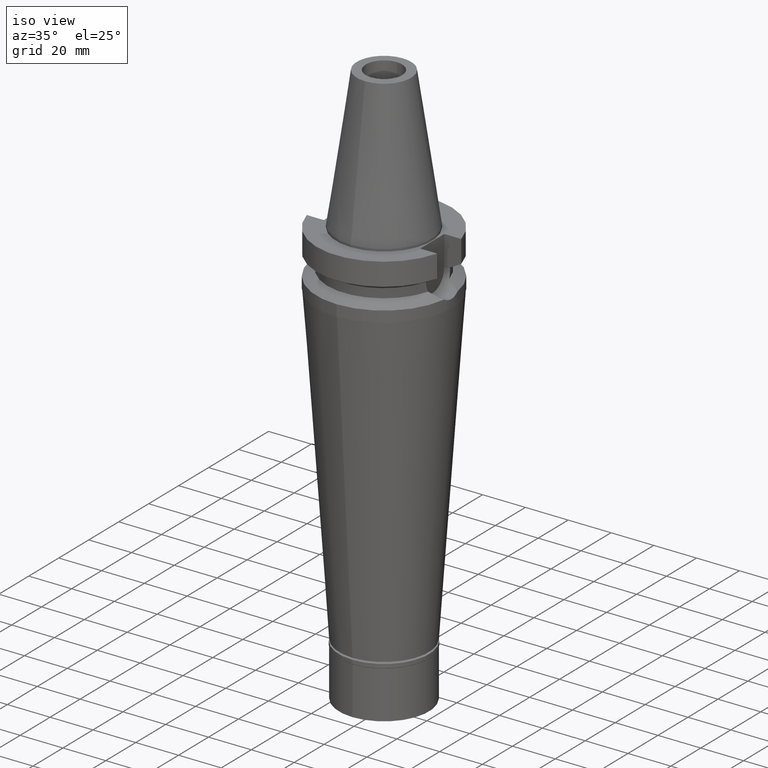
[diagram: clean part render]
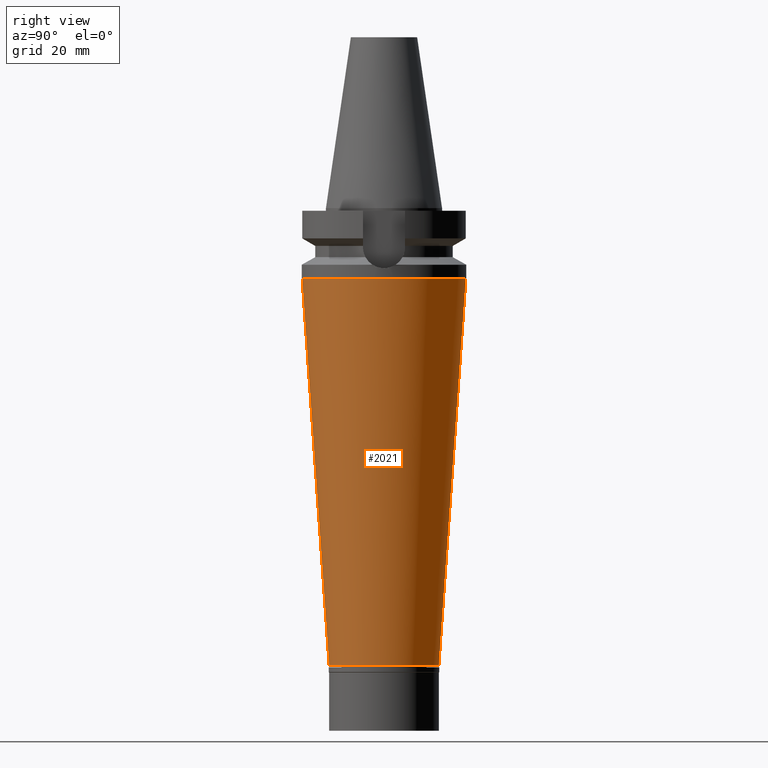
[diagram: tour spotlight — one face highlighted and labeled with its STEP entity id]
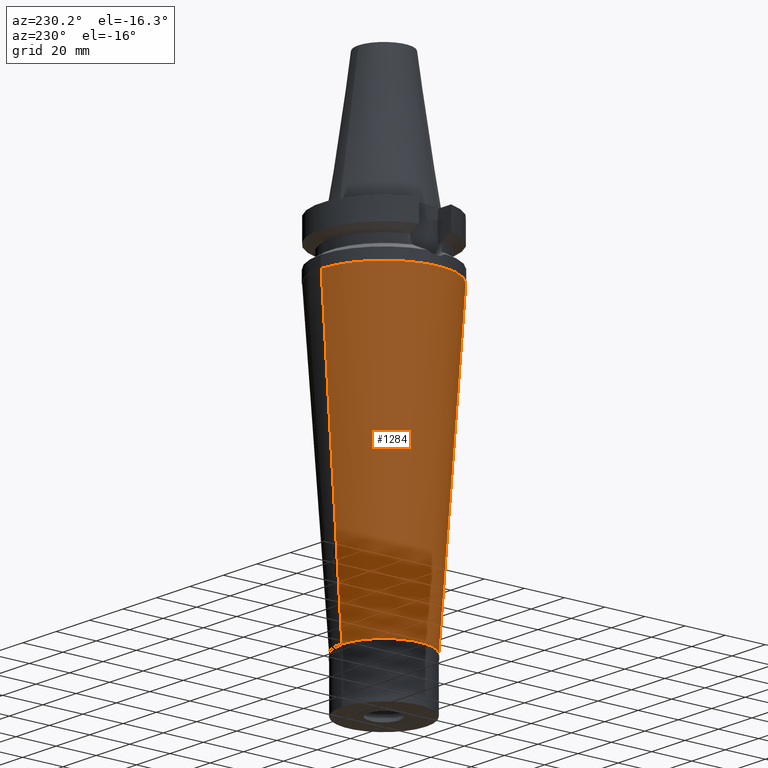
[diagram: tour spotlight — one face highlighted and labeled with its STEP entity id]
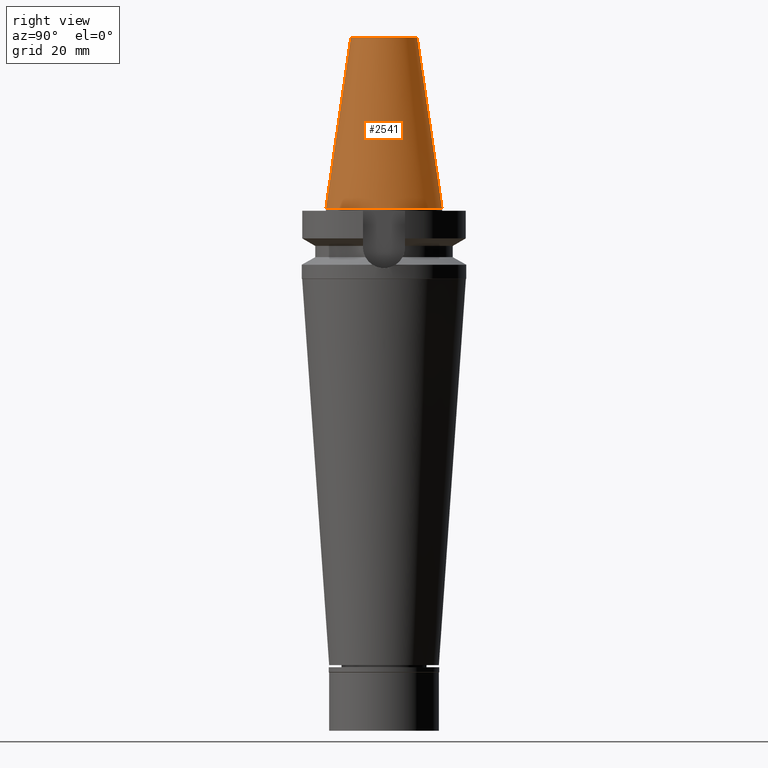
[diagram: tour spotlight — one face highlighted and labeled with its STEP entity id]
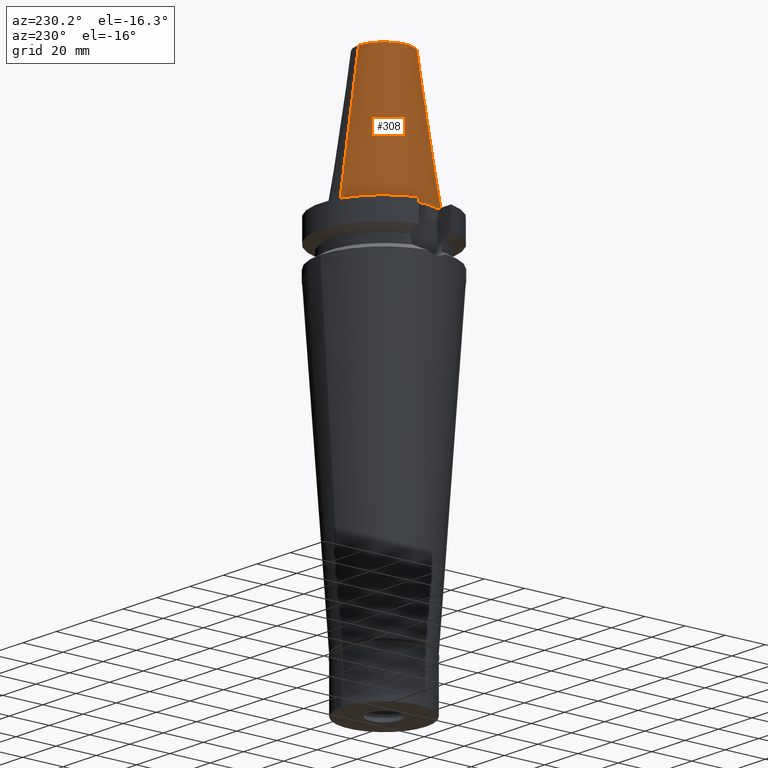
[diagram: tour spotlight — one face highlighted and labeled with its STEP entity id]
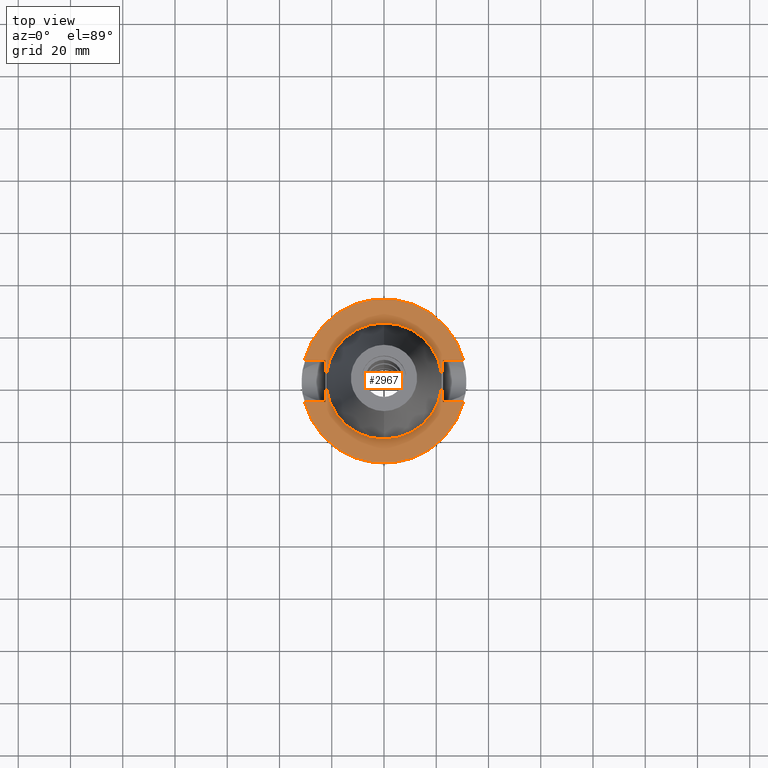
[diagram: tour spotlight — one face highlighted and labeled with its STEP entity id]
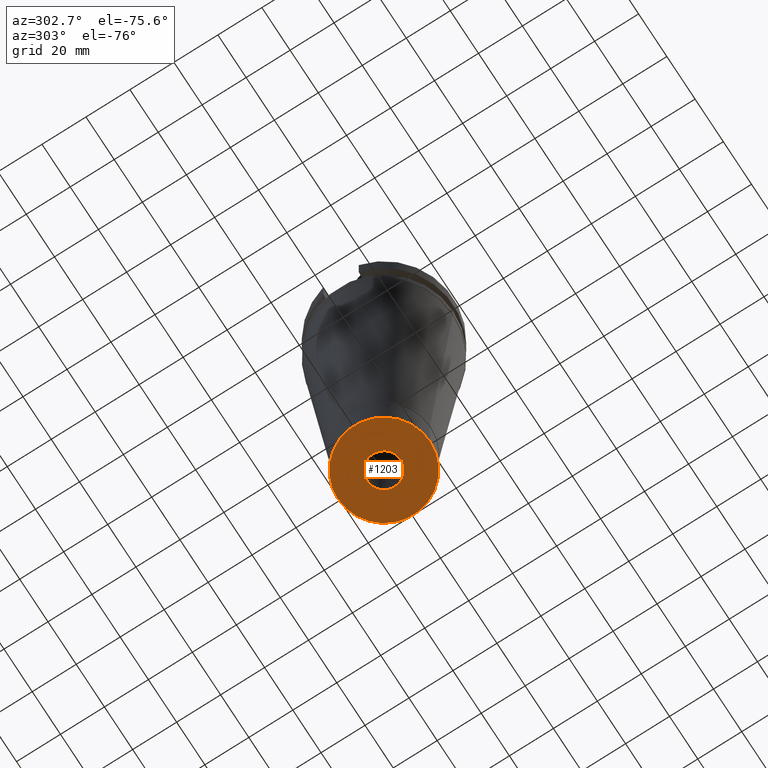
[diagram: tour spotlight — one face highlighted and labeled with its STEP entity id]
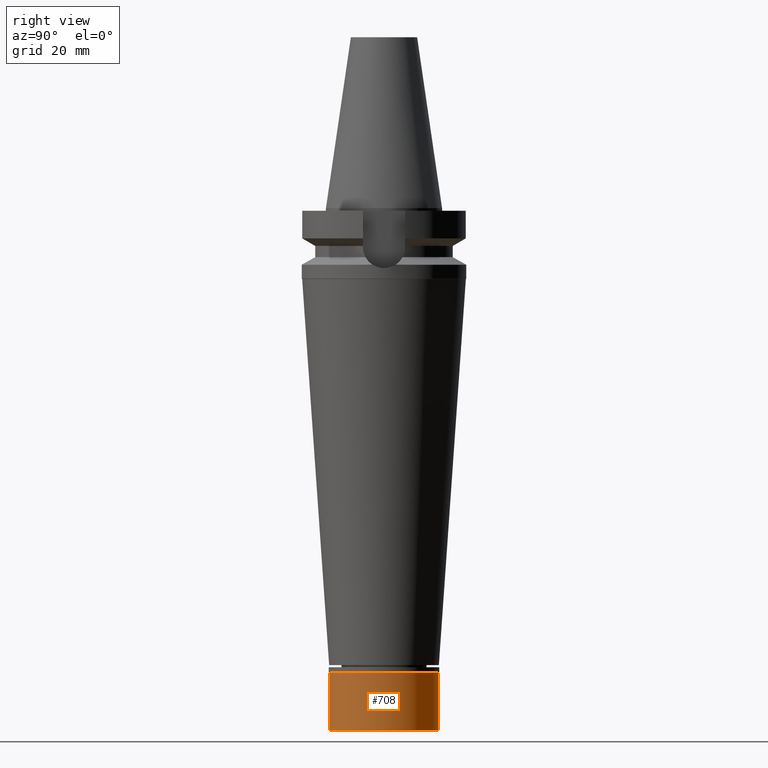
[diagram: tour spotlight — one face highlighted and labeled with its STEP entity id]
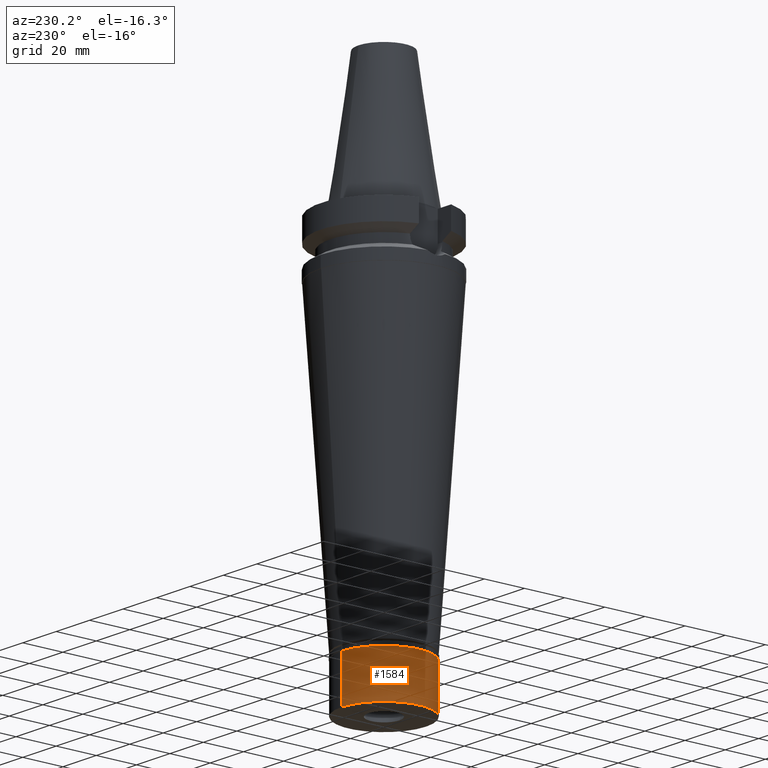
[diagram: tour spotlight — one face highlighted and labeled with its STEP entity id]
A machine part: a face-by-face anatomy tour. The part has 81 B-rep faces; the first image is the clean iso view, then the 8 largest visible faces are spotlighted one at a time (largest first), each with its STEP entity span.

Face 1 — right view, entity #2021. In plain terms, the highlighted conical surface has half-angle 4 deg.
Definition (entity closure, byte-faithful):
#76 = DIRECTION ( 'NONE',  ( 0.0000000000000000000, 0.0000000000000000000, 1.000000000000000000 ) ) ;
#119 = AXIS2_PLACEMENT_3D ( 'NONE', #1590, #2550, #2302 ) ;
#217 = VECTOR ( 'NONE', #2978, 1000.000000000000114 ) ;
#280 = DIRECTION ( 'NONE',  ( 0.0000000000000000000, -0.06975647374412166646, -0.9975640502598245307 ) ) ;
#337 = ORIENTED_EDGE ( 'NONE', *, *, #1021, .T. ) ;
#381 = CARTESIAN_POINT ( 'NONE',  ( 0.0000000000000000000, -21.00000000000000000, -174.9000000000000057 ) ) ;
#435 = DIRECTION ( 'NONE',  ( 0.0000000000000000000, -1.000000000000000000, 0.0000000000000000000 ) ) ;
#541 = CARTESIAN_POINT ( 'NONE',  ( 0.0000000000000000000, 21.00000000000000000, -174.9000000000000057 ) ) ;
#696 = CIRCLE ( 'NONE', #2054, 31.33518280526000055 ) ;
#939 = CONICAL_SURFACE ( 'NONE', #2407, 26.16759140262999850, 0.06981317007975955391 ) ;
#1021 = EDGE_CURVE ( 'NONE', #1984, #1617, #1518, .T. ) ;
#1039 = EDGE_CURVE ( 'NONE', #2775, #1076, #1565, .T. ) ;
#1076 = VERTEX_POINT ( 'NONE', #541 ) ;
#1168 = ORIENTED_EDGE ( 'NONE', *, *, #1039, .F. ) ;
#1192 = CARTESIAN_POINT ( 'NONE',  ( 0.0000000000000000000, 0.0000000000000000000, -27.09999999999999787 ) ) ;
#1282 = CARTESIAN_POINT ( 'NONE',  ( 0.0000000000000000000, -31.33518280525000321, -27.09999999999999787 ) ) ;
#1303 = ORIENTED_EDGE ( 'NONE', *, *, #2995, .F. ) ;
#1444 = DIRECTION ( 'NONE',  ( 0.0000000000000000000, 0.0000000000000000000, 1.000000000000000000 ) ) ;
#1482 = VECTOR ( 'NONE', #280, 1000.000000000000114 ) ;
#1487 = CIRCLE ( 'NONE', #119, 21.00000000000000000 ) ;
#1518 = LINE ( 'NONE', #1282, #217 ) ;
#1565 = LINE ( 'NONE', #2773, #1482 ) ;
#1590 = CARTESIAN_POINT ( 'NONE',  ( 0.0000000000000000000, 0.0000000000000000000, -174.9000000000000057 ) ) ;
#1613 = CARTESIAN_POINT ( 'NONE',  ( 0.0000000000000000000, 31.33518280525000321, -27.09999999999999787 ) ) ;
#1617 = VERTEX_POINT ( 'NONE', #381 ) ;
#1876 = ORIENTED_EDGE ( 'NONE', *, *, #2073, .T. ) ;
#1984 = VERTEX_POINT ( 'NONE', #2709 ) ;
#2021 = ADVANCED_FACE ( 'NONE', ( #2475 ), #939, .T. ) ;
#2054 = AXIS2_PLACEMENT_3D ( 'NONE', #1192, #1444, #435 ) ;
#2073 = EDGE_CURVE ( 'NONE', #1617, #1076, #1487, .T. ) ;
#2247 = DIRECTION ( 'NONE',  ( 0.0000000000000000000, 1.000000000000000000, 0.0000000000000000000 ) ) ;
#2302 = DIRECTION ( 'NONE',  ( 0.0000000000000000000, -1.000000000000000000, 0.0000000000000000000 ) ) ;
#2407 = AXIS2_PLACEMENT_3D ( 'NONE', #2692, #76, #2247 ) ;
#2475 = FACE_OUTER_BOUND ( 'NONE', #3025, .T. ) ;
#2550 = DIRECTION ( 'NONE',  ( 0.0000000000000000000, 0.0000000000000000000, 1.000000000000000000 ) ) ;
#2692 = CARTESIAN_POINT ( 'NONE',  ( 0.0000000000000000000, 0.0000000000000000000, -101.0000000000000000 ) ) ;
#2709 = CARTESIAN_POINT ( 'NONE',  ( 0.0000000000000000000, -31.33518280525000321, -27.09999999999999787 ) ) ;
#2773 = CARTESIAN_POINT ( 'NONE',  ( 0.0000000000000000000, 31.33518280525000321, -27.09999999999999787 ) ) ;
#2775 = VERTEX_POINT ( 'NONE', #1613 ) ;
#2978 = DIRECTION ( 'NONE',  ( 0.0000000000000000000, 0.06975647374412166646, -0.9975640502598245307 ) ) ;
#2995 = EDGE_CURVE ( 'NONE', #1984, #2775, #696, .T. ) ;
#3025 = EDGE_LOOP ( 'NONE', ( #1303, #337, #1876, #1168 ) ) ;

Face 2 — auxiliary view, entity #1284. In plain terms, the highlighted conical surface has half-angle 4 deg.
Definition (entity closure, byte-faithful):
#101 = EDGE_CURVE ( 'NONE', #1076, #1617, #2695, .T. ) ;
#217 = VECTOR ( 'NONE', #2978, 1000.000000000000114 ) ;
#280 = DIRECTION ( 'NONE',  ( 0.0000000000000000000, -0.06975647374412166646, -0.9975640502598245307 ) ) ;
#373 = AXIS2_PLACEMENT_3D ( 'NONE', #3110, #1415, #944 ) ;
#381 = CARTESIAN_POINT ( 'NONE',  ( 0.0000000000000000000, -21.00000000000000000, -174.9000000000000057 ) ) ;
#541 = CARTESIAN_POINT ( 'NONE',  ( 0.0000000000000000000, 21.00000000000000000, -174.9000000000000057 ) ) ;
#555 = ORIENTED_EDGE ( 'NONE', *, *, #101, .T. ) ;
#813 = ORIENTED_EDGE ( 'NONE', *, *, #1021, .F. ) ;
#944 = DIRECTION ( 'NONE',  ( 0.0000000000000000000, 1.000000000000000000, 0.0000000000000000000 ) ) ;
#1021 = EDGE_CURVE ( 'NONE', #1984, #1617, #1518, .T. ) ;
#1039 = EDGE_CURVE ( 'NONE', #2775, #1076, #1565, .T. ) ;
#1076 = VERTEX_POINT ( 'NONE', #541 ) ;
#1092 = AXIS2_PLACEMENT_3D ( 'NONE', #2072, #1350, #3004 ) ;
#1282 = CARTESIAN_POINT ( 'NONE',  ( 0.0000000000000000000, -31.33518280525000321, -27.09999999999999787 ) ) ;
#1284 = ADVANCED_FACE ( 'NONE', ( #1461 ), #2704, .T. ) ;
#1341 = ORIENTED_EDGE ( 'NONE', *, *, #2058, .T. ) ;
#1350 = DIRECTION ( 'NONE',  ( 0.0000000000000000000, 0.0000000000000000000, -1.000000000000000000 ) ) ;
#1415 = DIRECTION ( 'NONE',  ( 0.0000000000000000000, 0.0000000000000000000, 1.000000000000000000 ) ) ;
#1461 = FACE_OUTER_BOUND ( 'NONE', #1571, .T. ) ;
#1482 = VECTOR ( 'NONE', #280, 1000.000000000000114 ) ;
#1518 = LINE ( 'NONE', #1282, #217 ) ;
#1565 = LINE ( 'NONE', #2773, #1482 ) ;
#1571 = EDGE_LOOP ( 'NONE', ( #555, #813, #1341, #2716 ) ) ;
#1573 = DIRECTION ( 'NONE',  ( 0.0000000000000000000, 0.0000000000000000000, 1.000000000000000000 ) ) ;
#1613 = CARTESIAN_POINT ( 'NONE',  ( 0.0000000000000000000, 31.33518280525000321, -27.09999999999999787 ) ) ;
#1617 = VERTEX_POINT ( 'NONE', #381 ) ;
#1984 = VERTEX_POINT ( 'NONE', #2709 ) ;
#2058 = EDGE_CURVE ( 'NONE', #1984, #2775, #2455, .T. ) ;
#2070 = CARTESIAN_POINT ( 'NONE',  ( 0.0000000000000000000, 0.0000000000000000000, -174.9000000000000057 ) ) ;
#2072 = CARTESIAN_POINT ( 'NONE',  ( 0.0000000000000000000, 0.0000000000000000000, -27.09999999999999787 ) ) ;
#2349 = AXIS2_PLACEMENT_3D ( 'NONE', #2070, #1573, #2530 ) ;
#2455 = CIRCLE ( 'NONE', #1092, 31.33518280525000321 ) ;
#2530 = DIRECTION ( 'NONE',  ( 0.0000000000000000000, 1.000000000000000000, 0.0000000000000000000 ) ) ;
#2695 = CIRCLE ( 'NONE', #2349, 21.00000000000000000 ) ;
#2704 = CONICAL_SURFACE ( 'NONE', #373, 26.16759140262999850, 0.06981317007975955391 ) ;
#2709 = CARTESIAN_POINT ( 'NONE',  ( 0.0000000000000000000, -31.33518280525000321, -27.09999999999999787 ) ) ;
#2716 = ORIENTED_EDGE ( 'NONE', *, *, #1039, .T. ) ;
#2773 = CARTESIAN_POINT ( 'NONE',  ( 0.0000000000000000000, 31.33518280525000321, -27.09999999999999787 ) ) ;
#2775 = VERTEX_POINT ( 'NONE', #1613 ) ;
#2978 = DIRECTION ( 'NONE',  ( 0.0000000000000000000, 0.06975647374412166646, -0.9975640502598245307 ) ) ;
#3004 = DIRECTION ( 'NONE',  ( 0.0000000000000000000, -1.000000000000000000, 0.0000000000000000000 ) ) ;
#3110 = CARTESIAN_POINT ( 'NONE',  ( 0.0000000000000000000, 0.0000000000000000000, -101.0000000000000000 ) ) ;

Face 3 — right view, entity #2541. In plain terms, the highlighted conical surface has half-angle 8.297 deg.
Definition (entity closure, byte-faithful):
#63 = CARTESIAN_POINT ( 'NONE',  ( 0.0000000000000000000, 22.22500000000000142, 8.526512829120999020E-14 ) ) ;
#75 = VECTOR ( 'NONE', #447, 1000.000000000000114 ) ;
#93 = CARTESIAN_POINT ( 'NONE',  ( 0.0000000000000000000, -12.68766899429999917, 65.40000000000000568 ) ) ;
#255 = DIRECTION ( 'NONE',  ( 0.0000000000000000000, 0.0000000000000000000, -1.000000000000000000 ) ) ;
#438 = EDGE_CURVE ( 'NONE', #2584, #1878, #1309, .T. ) ;
#447 = DIRECTION ( 'NONE',  ( 0.0000000000000000000, 0.1443043893539925626, -0.9895333461855498891 ) ) ;
#469 = ORIENTED_EDGE ( 'NONE', *, *, #1831, .F. ) ;
#510 = DIRECTION ( 'NONE',  ( 0.0000000000000000000, -0.1443043893539925626, -0.9895333461855498891 ) ) ;
#533 = DIRECTION ( 'NONE',  ( 0.0000000000000000000, 1.000000000000000000, 0.0000000000000000000 ) ) ;
#538 = CIRCLE ( 'NONE', #2202, 22.22500000000000142 ) ;
#742 = CARTESIAN_POINT ( 'NONE',  ( 0.0000000000000000000, 1.625106302469000024E-14, 1.136868377215999875E-13 ) ) ;
#775 = CARTESIAN_POINT ( 'NONE',  ( 0.0000000000000000000, -12.68766899429999917, 65.40000000000000568 ) ) ;
#811 = EDGE_LOOP ( 'NONE', ( #2917, #1759, #2939, #469 ) ) ;
#1157 = DIRECTION ( 'NONE',  ( 0.0000000000000000000, 0.0000000000000000000, -1.000000000000000000 ) ) ;
#1243 = CONICAL_SURFACE ( 'NONE', #1642, 17.45633449714999941, 0.1448099680379422438 ) ;
#1309 = LINE ( 'NONE', #93, #2107 ) ;
#1397 = AXIS2_PLACEMENT_3D ( 'NONE', #2703, #1157, #533 ) ;
#1430 = CARTESIAN_POINT ( 'NONE',  ( 0.0000000000000000000, 1.625106302469000024E-14, 32.70000000000000284 ) ) ;
#1462 = DIRECTION ( 'NONE',  ( 0.0000000000000000000, -1.000000000000000000, 0.0000000000000000000 ) ) ;
#1523 = VERTEX_POINT ( 'NONE', #63 ) ;
#1642 = AXIS2_PLACEMENT_3D ( 'NONE', #1430, #255, #1462 ) ;
#1661 = DIRECTION ( 'NONE',  ( 0.0000000000000000000, 0.0000000000000000000, -1.000000000000000000 ) ) ;
#1721 = VERTEX_POINT ( 'NONE', #2846 ) ;
#1759 = ORIENTED_EDGE ( 'NONE', *, *, #438, .T. ) ;
#1831 = EDGE_CURVE ( 'NONE', #1721, #1523, #2616, .T. ) ;
#1878 = VERTEX_POINT ( 'NONE', #2910 ) ;
#1930 = CARTESIAN_POINT ( 'NONE',  ( 0.0000000000000000000, 12.68766899429999917, 65.40000000000000568 ) ) ;
#2107 = VECTOR ( 'NONE', #510, 1000.000000000000114 ) ;
#2202 = AXIS2_PLACEMENT_3D ( 'NONE', #742, #1661, #2686 ) ;
#2340 = EDGE_CURVE ( 'NONE', #1721, #2584, #2853, .T. ) ;
#2503 = EDGE_CURVE ( 'NONE', #1523, #1878, #538, .T. ) ;
#2541 = ADVANCED_FACE ( 'NONE', ( #2916 ), #1243, .T. ) ;
#2584 = VERTEX_POINT ( 'NONE', #775 ) ;
#2616 = LINE ( 'NONE', #1930, #75 ) ;
#2686 = DIRECTION ( 'NONE',  ( 0.0000000000000000000, 1.000000000000000000, 0.0000000000000000000 ) ) ;
#2703 = CARTESIAN_POINT ( 'NONE',  ( 0.0000000000000000000, 1.625106302469000024E-14, 65.40000000000000568 ) ) ;
#2846 = CARTESIAN_POINT ( 'NONE',  ( 0.0000000000000000000, 12.68766899429999917, 65.40000000000000568 ) ) ;
#2853 = CIRCLE ( 'NONE', #1397, 12.68766899429999917 ) ;
#2910 = CARTESIAN_POINT ( 'NONE',  ( 0.0000000000000000000, -22.22500000000000142, 8.526512829120999020E-14 ) ) ;
#2916 = FACE_OUTER_BOUND ( 'NONE', #811, .T. ) ;
#2917 = ORIENTED_EDGE ( 'NONE', *, *, #2340, .T. ) ;
#2939 = ORIENTED_EDGE ( 'NONE', *, *, #2503, .F. ) ;

Face 4 — auxiliary view, entity #308. In plain terms, the highlighted conical surface has half-angle 8.297 deg.
Definition (entity closure, byte-faithful):
#63 = CARTESIAN_POINT ( 'NONE',  ( 0.0000000000000000000, 22.22500000000000142, 8.526512829120999020E-14 ) ) ;
#75 = VECTOR ( 'NONE', #447, 1000.000000000000114 ) ;
#93 = CARTESIAN_POINT ( 'NONE',  ( 0.0000000000000000000, -12.68766899429999917, 65.40000000000000568 ) ) ;
#195 = EDGE_CURVE ( 'NONE', #1878, #1523, #2596, .T. ) ;
#260 = AXIS2_PLACEMENT_3D ( 'NONE', #1331, #1374, #1547 ) ;
#308 = ADVANCED_FACE ( 'NONE', ( #3072 ), #2035, .T. ) ;
#348 = ORIENTED_EDGE ( 'NONE', *, *, #426, .T. ) ;
#357 = ORIENTED_EDGE ( 'NONE', *, *, #438, .F. ) ;
#426 = EDGE_CURVE ( 'NONE', #2584, #1721, #2893, .T. ) ;
#438 = EDGE_CURVE ( 'NONE', #2584, #1878, #1309, .T. ) ;
#443 = CARTESIAN_POINT ( 'NONE',  ( 0.0000000000000000000, 1.625106302469000024E-14, 65.40000000000000568 ) ) ;
#447 = DIRECTION ( 'NONE',  ( 0.0000000000000000000, 0.1443043893539925626, -0.9895333461855498891 ) ) ;
#510 = DIRECTION ( 'NONE',  ( 0.0000000000000000000, -0.1443043893539925626, -0.9895333461855498891 ) ) ;
#728 = DIRECTION ( 'NONE',  ( 0.0000000000000000000, -1.000000000000000000, 0.0000000000000000000 ) ) ;
#775 = CARTESIAN_POINT ( 'NONE',  ( 0.0000000000000000000, -12.68766899429999917, 65.40000000000000568 ) ) ;
#987 = AXIS2_PLACEMENT_3D ( 'NONE', #443, #2657, #2378 ) ;
#1132 = AXIS2_PLACEMENT_3D ( 'NONE', #1890, #2100, #728 ) ;
#1309 = LINE ( 'NONE', #93, #2107 ) ;
#1331 = CARTESIAN_POINT ( 'NONE',  ( 0.0000000000000000000, 1.625106302469000024E-14, 1.136868377215999875E-13 ) ) ;
#1374 = DIRECTION ( 'NONE',  ( 0.0000000000000000000, 0.0000000000000000000, -1.000000000000000000 ) ) ;
#1523 = VERTEX_POINT ( 'NONE', #63 ) ;
#1547 = DIRECTION ( 'NONE',  ( 0.0000000000000000000, -1.000000000000000000, 0.0000000000000000000 ) ) ;
#1721 = VERTEX_POINT ( 'NONE', #2846 ) ;
#1831 = EDGE_CURVE ( 'NONE', #1721, #1523, #2616, .T. ) ;
#1878 = VERTEX_POINT ( 'NONE', #2910 ) ;
#1890 = CARTESIAN_POINT ( 'NONE',  ( 0.0000000000000000000, 1.625106302469000024E-14, 32.70000000000000284 ) ) ;
#1930 = CARTESIAN_POINT ( 'NONE',  ( 0.0000000000000000000, 12.68766899429999917, 65.40000000000000568 ) ) ;
#2035 = CONICAL_SURFACE ( 'NONE', #1132, 17.45633449714999941, 0.1448099680379422438 ) ;
#2100 = DIRECTION ( 'NONE',  ( 0.0000000000000000000, 0.0000000000000000000, -1.000000000000000000 ) ) ;
#2107 = VECTOR ( 'NONE', #510, 1000.000000000000114 ) ;
#2194 = ORIENTED_EDGE ( 'NONE', *, *, #195, .F. ) ;
#2378 = DIRECTION ( 'NONE',  ( 0.0000000000000000000, -1.000000000000000000, 0.0000000000000000000 ) ) ;
#2406 = ORIENTED_EDGE ( 'NONE', *, *, #1831, .T. ) ;
#2584 = VERTEX_POINT ( 'NONE', #775 ) ;
#2596 = CIRCLE ( 'NONE', #260, 22.22500000000000142 ) ;
#2616 = LINE ( 'NONE', #1930, #75 ) ;
#2657 = DIRECTION ( 'NONE',  ( 0.0000000000000000000, 0.0000000000000000000, -1.000000000000000000 ) ) ;
#2846 = CARTESIAN_POINT ( 'NONE',  ( 0.0000000000000000000, 12.68766899429999917, 65.40000000000000568 ) ) ;
#2893 = CIRCLE ( 'NONE', #987, 12.68766899429999917 ) ;
#2910 = CARTESIAN_POINT ( 'NONE',  ( 0.0000000000000000000, -22.22500000000000142, 8.526512829120999020E-14 ) ) ;
#2965 = EDGE_LOOP ( 'NONE', ( #2194, #357, #348, #2406 ) ) ;
#3072 = FACE_OUTER_BOUND ( 'NONE', #2965, .T. ) ;

Face 5 — top view, entity #2967. In plain terms, the highlighted planar face has unit normal (0, 0, -1).
Definition (entity closure, byte-faithful):
#10 = DIRECTION ( 'NONE',  ( 0.0000000000000000000, 1.000000000000000000, 0.0000000000000000000 ) ) ;
#72 = VECTOR ( 'NONE', #2554, 1000.000000000000000 ) ;
#107 = DIRECTION ( 'NONE',  ( 0.0000000000000000000, 0.0000000000000000000, 1.000000000000000000 ) ) ;
#186 = DIRECTION ( 'NONE',  ( 0.0000000000000000000, 0.0000000000000000000, -1.000000000000000000 ) ) ;
#219 = LINE ( 'NONE', #2374, #644 ) ;
#227 = DIRECTION ( 'NONE',  ( 0.0000000000000000000, -1.000000000000000000, 0.0000000000000000000 ) ) ;
#237 = VERTEX_POINT ( 'NONE', #2322 ) ;
#240 = CARTESIAN_POINT ( 'NONE',  ( 22.50000000000000000, 8.050000000000000711, -1.000000000000000000 ) ) ;
#251 = FACE_BOUND ( 'NONE', #1082, .T. ) ;
#275 = DIRECTION ( 'NONE',  ( 0.0000000000000000000, 1.000000000000000000, 0.0000000000000000000 ) ) ;
#377 = ORIENTED_EDGE ( 'NONE', *, *, #3083, .F. ) ;
#415 = DIRECTION ( 'NONE',  ( -1.000000000000000000, 3.550916904668000126E-14, 0.0000000000000000000 ) ) ;
#467 = EDGE_CURVE ( 'NONE', #1577, #582, #2549, .T. ) ;
#476 = PLANE ( 'NONE',  #846 ) ;
#562 = ORIENTED_EDGE ( 'NONE', *, *, #2320, .F. ) ;
#582 = VERTEX_POINT ( 'NONE', #2373 ) ;
#640 = CARTESIAN_POINT ( 'NONE',  ( -22.50000000000000000, -8.050000000000000711, -1.000000000000000000 ) ) ;
#644 = VECTOR ( 'NONE', #1175, 1000.000000000000000 ) ;
#691 = CARTESIAN_POINT ( 'NONE',  ( -22.50000000000000000, 8.050000000000000711, -1.000000000000000000 ) ) ;
#766 = VERTEX_POINT ( 'NONE', #2427 ) ;
#810 = DIRECTION ( 'NONE',  ( 0.0000000000000000000, -1.000000000000000000, 0.0000000000000000000 ) ) ;
#823 = VERTEX_POINT ( 'NONE', #1916 ) ;
#846 = AXIS2_PLACEMENT_3D ( 'NONE', #1460, #3092, #992 ) ;
#854 = VERTEX_POINT ( 'NONE', #3125 ) ;
#942 = AXIS2_PLACEMENT_3D ( 'NONE', #2885, #186, #227 ) ;
#966 = DIRECTION ( 'NONE',  ( 1.000000000000000000, 3.573249715389999860E-14, 0.0000000000000000000 ) ) ;
#984 = ORIENTED_EDGE ( 'NONE', *, *, #1605, .F. ) ;
#990 = AXIS2_PLACEMENT_3D ( 'NONE', #2029, #107, #810 ) ;
#992 = DIRECTION ( 'NONE',  ( 0.0000000000000000000, -1.000000000000000000, 0.0000000000000000000 ) ) ;
#1068 = CARTESIAN_POINT ( 'NONE',  ( -22.50000000000000000, 8.050000000000000711, -1.000000000000000000 ) ) ;
#1082 = EDGE_LOOP ( 'NONE', ( #3030, #2578 ) ) ;
#1103 = VERTEX_POINT ( 'NONE', #1715 ) ;
#1175 = DIRECTION ( 'NONE',  ( 0.0000000000000000000, -1.000000000000000000, 0.0000000000000000000 ) ) ;
#1239 = LINE ( 'NONE', #2388, #3114 ) ;
#1277 = EDGE_CURVE ( 'NONE', #237, #1422, #1919, .T. ) ;
#1328 = ORIENTED_EDGE ( 'NONE', *, *, #1344, .F. ) ;
#1344 = EDGE_CURVE ( 'NONE', #1103, #1422, #2798, .T. ) ;
#1381 = CARTESIAN_POINT ( 'NONE',  ( 0.0000000000000000000, 22.22500000000000142, -1.000000000000000000 ) ) ;
#1417 = EDGE_CURVE ( 'NONE', #582, #1577, #2361, .T. ) ;
#1422 = VERTEX_POINT ( 'NONE', #2463 ) ;
#1445 = CIRCLE ( 'NONE', #942, 31.50000000000000000 ) ;
#1460 = CARTESIAN_POINT ( 'NONE',  ( 0.0000000000000000000, 1.212400331155999925E-14, -1.000000000000000000 ) ) ;
#1577 = VERTEX_POINT ( 'NONE', #1381 ) ;
#1581 = EDGE_CURVE ( 'NONE', #766, #823, #2355, .T. ) ;
#1605 = EDGE_CURVE ( 'NONE', #766, #1946, #3078, .T. ) ;
#1690 = DIRECTION ( 'NONE',  ( 1.000000000000000000, -3.506251283225999947E-14, 0.0000000000000000000 ) ) ;
#1715 = CARTESIAN_POINT ( 'NONE',  ( -30.45402272279000044, 8.050000000000000711, -1.000000000000000000 ) ) ;
#1720 = CARTESIAN_POINT ( 'NONE',  ( 0.0000000000000000000, 2.183484010539999864E-14, -1.000000000000000000 ) ) ;
#1730 = VECTOR ( 'NONE', #1690, 1000.000000000000000 ) ;
#1740 = ORIENTED_EDGE ( 'NONE', *, *, #1277, .T. ) ;
#1916 = CARTESIAN_POINT ( 'NONE',  ( -30.45402272279000044, -8.050000000000000711, -1.000000000000000000 ) ) ;
#1919 = LINE ( 'NONE', #240, #1730 ) ;
#1945 = VECTOR ( 'NONE', #415, 1000.000000000000000 ) ;
#1946 = VERTEX_POINT ( 'NONE', #1068 ) ;
#2028 = EDGE_LOOP ( 'NONE', ( #2218, #562, #2568, #377, #1740, #1328, #3135, #984 ) ) ;
#2029 = CARTESIAN_POINT ( 'NONE',  ( 0.0000000000000000000, 2.183484010539999864E-14, -1.000000000000000000 ) ) ;
#2076 = CARTESIAN_POINT ( 'NONE',  ( -22.50000000000000000, -8.050000000000000711, -1.000000000000000000 ) ) ;
#2090 = AXIS2_PLACEMENT_3D ( 'NONE', #2449, #2902, #275 ) ;
#2139 = LINE ( 'NONE', #691, #2411 ) ;
#2186 = DIRECTION ( 'NONE',  ( 0.0000000000000000000, 0.0000000000000000000, -1.000000000000000000 ) ) ;
#2218 = ORIENTED_EDGE ( 'NONE', *, *, #1581, .T. ) ;
#2320 = EDGE_CURVE ( 'NONE', #854, #823, #1445, .T. ) ;
#2322 = CARTESIAN_POINT ( 'NONE',  ( 22.50000000000000000, 8.050000000000000711, -1.000000000000000000 ) ) ;
#2355 = LINE ( 'NONE', #2076, #1945 ) ;
#2361 = CIRCLE ( 'NONE', #990, 22.22500000000000142 ) ;
#2373 = CARTESIAN_POINT ( 'NONE',  ( 0.0000000000000000000, -22.22500000000000142, -1.000000000000000000 ) ) ;
#2374 = CARTESIAN_POINT ( 'NONE',  ( 22.50000000000000000, 8.050000000000000711, -1.000000000000000000 ) ) ;
#2388 = CARTESIAN_POINT ( 'NONE',  ( 22.50000000000000000, -8.050000000000000711, -1.000000000000000000 ) ) ;
#2401 = AXIS2_PLACEMENT_3D ( 'NONE', #1720, #2186, #10 ) ;
#2411 = VECTOR ( 'NONE', #2620, 1000.000000000000000 ) ;
#2427 = CARTESIAN_POINT ( 'NONE',  ( -22.50000000000000000, -8.050000000000000711, -1.000000000000000000 ) ) ;
#2449 = CARTESIAN_POINT ( 'NONE',  ( 0.0000000000000000000, 2.183484010539999864E-14, -1.000000000000000000 ) ) ;
#2463 = CARTESIAN_POINT ( 'NONE',  ( 30.45402272279000044, 8.050000000000000711, -1.000000000000000000 ) ) ;
#2549 = CIRCLE ( 'NONE', #2090, 22.22500000000000142 ) ;
#2554 = DIRECTION ( 'NONE',  ( 0.0000000000000000000, 1.000000000000000000, 0.0000000000000000000 ) ) ;
#2562 = EDGE_CURVE ( 'NONE', #2975, #854, #1239, .T. ) ;
#2568 = ORIENTED_EDGE ( 'NONE', *, *, #2562, .F. ) ;
#2578 = ORIENTED_EDGE ( 'NONE', *, *, #1417, .F. ) ;
#2620 = DIRECTION ( 'NONE',  ( -1.000000000000000000, -3.550916904668000126E-14, 0.0000000000000000000 ) ) ;
#2798 = CIRCLE ( 'NONE', #2401, 31.50000000000000000 ) ;
#2885 = CARTESIAN_POINT ( 'NONE',  ( 0.0000000000000000000, 2.183484010539999864E-14, -1.000000000000000000 ) ) ;
#2902 = DIRECTION ( 'NONE',  ( 0.0000000000000000000, 0.0000000000000000000, 1.000000000000000000 ) ) ;
#2967 = ADVANCED_FACE ( 'NONE', ( #3046, #251 ), #476, .F. ) ;
#2975 = VERTEX_POINT ( 'NONE', #3139 ) ;
#3030 = ORIENTED_EDGE ( 'NONE', *, *, #467, .F. ) ;
#3046 = FACE_OUTER_BOUND ( 'NONE', #2028, .T. ) ;
#3078 = LINE ( 'NONE', #640, #72 ) ;
#3083 = EDGE_CURVE ( 'NONE', #237, #2975, #219, .T. ) ;
#3092 = DIRECTION ( 'NONE',  ( 0.0000000000000000000, 0.0000000000000000000, -1.000000000000000000 ) ) ;
#3095 = EDGE_CURVE ( 'NONE', #1946, #1103, #2139, .T. ) ;
#3114 = VECTOR ( 'NONE', #966, 1000.000000000000000 ) ;
#3125 = CARTESIAN_POINT ( 'NONE',  ( 30.45402272279000044, -8.050000000000000711, -1.000000000000000000 ) ) ;
#3135 = ORIENTED_EDGE ( 'NONE', *, *, #3095, .F. ) ;
#3139 = CARTESIAN_POINT ( 'NONE',  ( 22.50000000000000000, -8.050000000000000711, -1.000000000000000000 ) ) ;

Face 6 — auxiliary view, entity #1203. In plain terms, the highlighted planar face has unit normal (0, 0, -1).
Definition (entity closure, byte-faithful):
#56 = CARTESIAN_POINT ( 'NONE',  ( 0.0000000000000000000, 0.0000000000000000000, -24.29999999999999716 ) ) ;
#74 = DIRECTION ( 'NONE',  ( 0.0000000000000000000, 0.0000000000000000000, -1.000000000000000000 ) ) ;
#81 = AXIS2_PLACEMENT_3D ( 'NONE', #1742, #1985, #2761 ) ;
#90 = FACE_OUTER_BOUND ( 'NONE', #3123, .T. ) ;
#113 = EDGE_CURVE ( 'NONE', #324, #1700, #470, .T. ) ;
#148 = DIRECTION ( 'NONE',  ( 0.0000000000000000000, 1.000000000000000000, 0.0000000000000000000 ) ) ;
#263 = DIRECTION ( 'NONE',  ( 0.0000000000000000000, -1.000000000000000000, 0.0000000000000000000 ) ) ;
#264 = CIRCLE ( 'NONE', #2301, 7.700000000000000178 ) ;
#324 = VERTEX_POINT ( 'NONE', #2391 ) ;
#470 = CIRCLE ( 'NONE', #985, 21.00000000000000000 ) ;
#720 = ORIENTED_EDGE ( 'NONE', *, *, #2660, .F. ) ;
#832 = VERTEX_POINT ( 'NONE', #1657 ) ;
#841 = EDGE_CURVE ( 'NONE', #2410, #832, #264, .T. ) ;
#880 = CARTESIAN_POINT ( 'NONE',  ( 0.0000000000000000000, -21.00000000000000000, -24.29999999999999716 ) ) ;
#985 = AXIS2_PLACEMENT_3D ( 'NONE', #2752, #2547, #148 ) ;
#1016 = DIRECTION ( 'NONE',  ( 0.0000000000000000000, 0.0000000000000000000, 1.000000000000000000 ) ) ;
#1061 = DIRECTION ( 'NONE',  ( 0.0000000000000000000, -1.000000000000000000, 0.0000000000000000000 ) ) ;
#1066 = FACE_BOUND ( 'NONE', #2907, .T. ) ;
#1203 = ADVANCED_FACE ( 'NONE', ( #90, #1066 ), #1250, .T. ) ;
#1250 = PLANE ( 'NONE',  #2504 ) ;
#1657 = CARTESIAN_POINT ( 'NONE',  ( 0.0000000000000000000, 7.700000000000000178, -24.29999999999999716 ) ) ;
#1700 = VERTEX_POINT ( 'NONE', #880 ) ;
#1742 = CARTESIAN_POINT ( 'NONE',  ( 0.0000000000000000000, 0.0000000000000000000, -24.29999999999999716 ) ) ;
#1921 = CARTESIAN_POINT ( 'NONE',  ( 0.0000000000000000000, -7.700000000000000178, -24.29999999999999716 ) ) ;
#1985 = DIRECTION ( 'NONE',  ( 0.0000000000000000000, 0.0000000000000000000, -1.000000000000000000 ) ) ;
#2153 = DIRECTION ( 'NONE',  ( 0.0000000000000000000, 0.0000000000000000000, -1.000000000000000000 ) ) ;
#2259 = CIRCLE ( 'NONE', #2461, 21.00000000000000000 ) ;
#2301 = AXIS2_PLACEMENT_3D ( 'NONE', #2439, #2153, #263 ) ;
#2367 = CIRCLE ( 'NONE', #81, 7.700000000000000178 ) ;
#2391 = CARTESIAN_POINT ( 'NONE',  ( 0.0000000000000000000, 21.00000000000000000, -24.29999999999999716 ) ) ;
#2410 = VERTEX_POINT ( 'NONE', #1921 ) ;
#2439 = CARTESIAN_POINT ( 'NONE',  ( 0.0000000000000000000, 0.0000000000000000000, -24.29999999999999716 ) ) ;
#2461 = AXIS2_PLACEMENT_3D ( 'NONE', #2948, #1016, #1061 ) ;
#2504 = AXIS2_PLACEMENT_3D ( 'NONE', #56, #74, #2928 ) ;
#2527 = ORIENTED_EDGE ( 'NONE', *, *, #841, .F. ) ;
#2547 = DIRECTION ( 'NONE',  ( 0.0000000000000000000, 0.0000000000000000000, 1.000000000000000000 ) ) ;
#2590 = ORIENTED_EDGE ( 'NONE', *, *, #113, .F. ) ;
#2638 = EDGE_CURVE ( 'NONE', #832, #2410, #2367, .T. ) ;
#2660 = EDGE_CURVE ( 'NONE', #1700, #324, #2259, .T. ) ;
#2752 = CARTESIAN_POINT ( 'NONE',  ( 0.0000000000000000000, 0.0000000000000000000, -24.29999999999999716 ) ) ;
#2761 = DIRECTION ( 'NONE',  ( 0.0000000000000000000, 1.000000000000000000, 0.0000000000000000000 ) ) ;
#2907 = EDGE_LOOP ( 'NONE', ( #3051, #2527 ) ) ;
#2928 = DIRECTION ( 'NONE',  ( 0.0000000000000000000, -1.000000000000000000, 0.0000000000000000000 ) ) ;
#2948 = CARTESIAN_POINT ( 'NONE',  ( 0.0000000000000000000, 0.0000000000000000000, -24.29999999999999716 ) ) ;
#3051 = ORIENTED_EDGE ( 'NONE', *, *, #2638, .F. ) ;
#3123 = EDGE_LOOP ( 'NONE', ( #2590, #720 ) ) ;

Face 7 — right view, entity #708. In plain terms, the highlighted cylindrical surface (partial cylindrical patch) has radius 21 mm, axis along (0, 0, -1).
Definition (entity closure, byte-faithful):
#11 = AXIS2_PLACEMENT_3D ( 'NONE', #1580, #1837, #900 ) ;
#46 = ORIENTED_EDGE ( 'NONE', *, *, #2901, .F. ) ;
#215 = ORIENTED_EDGE ( 'NONE', *, *, #2660, .T. ) ;
#216 = CARTESIAN_POINT ( 'NONE',  ( 0.0000000000000000000, 21.00000000000000000, -2.000000000000000000 ) ) ;
#324 = VERTEX_POINT ( 'NONE', #2391 ) ;
#529 = EDGE_LOOP ( 'NONE', ( #1873, #2628, #215, #46 ) ) ;
#534 = CIRCLE ( 'NONE', #741, 21.00000000000000000 ) ;
#611 = LINE ( 'NONE', #1570, #751 ) ;
#708 = ADVANCED_FACE ( 'NONE', ( #2357 ), #2111, .T. ) ;
#741 = AXIS2_PLACEMENT_3D ( 'NONE', #786, #1504, #2740 ) ;
#751 = VECTOR ( 'NONE', #2539, 1000.000000000000000 ) ;
#786 = CARTESIAN_POINT ( 'NONE',  ( 0.0000000000000000000, 0.0000000000000000000, -2.000000000000000000 ) ) ;
#880 = CARTESIAN_POINT ( 'NONE',  ( 0.0000000000000000000, -21.00000000000000000, -24.29999999999999716 ) ) ;
#900 = DIRECTION ( 'NONE',  ( 0.0000000000000000000, -1.000000000000000000, 0.0000000000000000000 ) ) ;
#901 = VECTOR ( 'NONE', #3062, 1000.000000000000000 ) ;
#1016 = DIRECTION ( 'NONE',  ( 0.0000000000000000000, 0.0000000000000000000, 1.000000000000000000 ) ) ;
#1061 = DIRECTION ( 'NONE',  ( 0.0000000000000000000, -1.000000000000000000, 0.0000000000000000000 ) ) ;
#1107 = CARTESIAN_POINT ( 'NONE',  ( 0.0000000000000000000, -21.00000000000000000, -2.000000000000000000 ) ) ;
#1258 = CARTESIAN_POINT ( 'NONE',  ( 0.0000000000000000000, -21.00000000000000000, -2.000000000000000000 ) ) ;
#1504 = DIRECTION ( 'NONE',  ( 0.0000000000000000000, 0.0000000000000000000, -1.000000000000000000 ) ) ;
#1570 = CARTESIAN_POINT ( 'NONE',  ( 0.0000000000000000000, 21.00000000000000000, -2.000000000000000000 ) ) ;
#1580 = CARTESIAN_POINT ( 'NONE',  ( 0.0000000000000000000, 0.0000000000000000000, 0.0000000000000000000 ) ) ;
#1700 = VERTEX_POINT ( 'NONE', #880 ) ;
#1837 = DIRECTION ( 'NONE',  ( 0.0000000000000000000, 0.0000000000000000000, -1.000000000000000000 ) ) ;
#1858 = LINE ( 'NONE', #1107, #901 ) ;
#1869 = VERTEX_POINT ( 'NONE', #216 ) ;
#1873 = ORIENTED_EDGE ( 'NONE', *, *, #1936, .T. ) ;
#1936 = EDGE_CURVE ( 'NONE', #1869, #2641, #534, .T. ) ;
#2111 = CYLINDRICAL_SURFACE ( 'NONE', #11, 21.00000000000000000 ) ;
#2259 = CIRCLE ( 'NONE', #2461, 21.00000000000000000 ) ;
#2357 = FACE_OUTER_BOUND ( 'NONE', #529, .T. ) ;
#2391 = CARTESIAN_POINT ( 'NONE',  ( 0.0000000000000000000, 21.00000000000000000, -24.29999999999999716 ) ) ;
#2461 = AXIS2_PLACEMENT_3D ( 'NONE', #2948, #1016, #1061 ) ;
#2539 = DIRECTION ( 'NONE',  ( 0.0000000000000000000, 0.0000000000000000000, -1.000000000000000000 ) ) ;
#2628 = ORIENTED_EDGE ( 'NONE', *, *, #2753, .T. ) ;
#2641 = VERTEX_POINT ( 'NONE', #1258 ) ;
#2660 = EDGE_CURVE ( 'NONE', #1700, #324, #2259, .T. ) ;
#2740 = DIRECTION ( 'NONE',  ( 0.0000000000000000000, 1.000000000000000000, 0.0000000000000000000 ) ) ;
#2753 = EDGE_CURVE ( 'NONE', #2641, #1700, #1858, .T. ) ;
#2901 = EDGE_CURVE ( 'NONE', #1869, #324, #611, .T. ) ;
#2948 = CARTESIAN_POINT ( 'NONE',  ( 0.0000000000000000000, 0.0000000000000000000, -24.29999999999999716 ) ) ;
#3062 = DIRECTION ( 'NONE',  ( 0.0000000000000000000, 0.0000000000000000000, -1.000000000000000000 ) ) ;

Face 8 — auxiliary view, entity #1584. In plain terms, the highlighted cylindrical surface (partial cylindrical patch) has radius 21 mm, axis along (0, 0, -1).
Definition (entity closure, byte-faithful):
#113 = EDGE_CURVE ( 'NONE', #324, #1700, #470, .T. ) ;
#120 = EDGE_LOOP ( 'NONE', ( #2498, #1436, #122, #921 ) ) ;
#122 = ORIENTED_EDGE ( 'NONE', *, *, #2983, .T. ) ;
#141 = DIRECTION ( 'NONE',  ( 0.0000000000000000000, 0.0000000000000000000, -1.000000000000000000 ) ) ;
#148 = DIRECTION ( 'NONE',  ( 0.0000000000000000000, 1.000000000000000000, 0.0000000000000000000 ) ) ;
#216 = CARTESIAN_POINT ( 'NONE',  ( 0.0000000000000000000, 21.00000000000000000, -2.000000000000000000 ) ) ;
#324 = VERTEX_POINT ( 'NONE', #2391 ) ;
#470 = CIRCLE ( 'NONE', #985, 21.00000000000000000 ) ;
#611 = LINE ( 'NONE', #1570, #751 ) ;
#751 = VECTOR ( 'NONE', #2539, 1000.000000000000000 ) ;
#880 = CARTESIAN_POINT ( 'NONE',  ( 0.0000000000000000000, -21.00000000000000000, -24.29999999999999716 ) ) ;
#901 = VECTOR ( 'NONE', #3062, 1000.000000000000000 ) ;
#915 = FACE_OUTER_BOUND ( 'NONE', #120, .T. ) ;
#921 = ORIENTED_EDGE ( 'NONE', *, *, #2901, .T. ) ;
#985 = AXIS2_PLACEMENT_3D ( 'NONE', #2752, #2547, #148 ) ;
#1107 = CARTESIAN_POINT ( 'NONE',  ( 0.0000000000000000000, -21.00000000000000000, -2.000000000000000000 ) ) ;
#1258 = CARTESIAN_POINT ( 'NONE',  ( 0.0000000000000000000, -21.00000000000000000, -2.000000000000000000 ) ) ;
#1436 = ORIENTED_EDGE ( 'NONE', *, *, #2753, .F. ) ;
#1570 = CARTESIAN_POINT ( 'NONE',  ( 0.0000000000000000000, 21.00000000000000000, -2.000000000000000000 ) ) ;
#1578 = DIRECTION ( 'NONE',  ( 0.0000000000000000000, -1.000000000000000000, 0.0000000000000000000 ) ) ;
#1584 = ADVANCED_FACE ( 'NONE', ( #915 ), #2330, .T. ) ;
#1689 = DIRECTION ( 'NONE',  ( 0.0000000000000000000, -1.000000000000000000, 0.0000000000000000000 ) ) ;
#1700 = VERTEX_POINT ( 'NONE', #880 ) ;
#1858 = LINE ( 'NONE', #1107, #901 ) ;
#1869 = VERTEX_POINT ( 'NONE', #216 ) ;
#1897 = AXIS2_PLACEMENT_3D ( 'NONE', #2155, #2646, #1689 ) ;
#2109 = CARTESIAN_POINT ( 'NONE',  ( 0.0000000000000000000, 0.0000000000000000000, 0.0000000000000000000 ) ) ;
#2155 = CARTESIAN_POINT ( 'NONE',  ( 0.0000000000000000000, 0.0000000000000000000, -2.000000000000000000 ) ) ;
#2330 = CYLINDRICAL_SURFACE ( 'NONE', #2803, 21.00000000000000000 ) ;
#2391 = CARTESIAN_POINT ( 'NONE',  ( 0.0000000000000000000, 21.00000000000000000, -24.29999999999999716 ) ) ;
#2498 = ORIENTED_EDGE ( 'NONE', *, *, #113, .T. ) ;
#2539 = DIRECTION ( 'NONE',  ( 0.0000000000000000000, 0.0000000000000000000, -1.000000000000000000 ) ) ;
#2547 = DIRECTION ( 'NONE',  ( 0.0000000000000000000, 0.0000000000000000000, 1.000000000000000000 ) ) ;
#2612 = CIRCLE ( 'NONE', #1897, 21.00000000000000000 ) ;
#2641 = VERTEX_POINT ( 'NONE', #1258 ) ;
#2646 = DIRECTION ( 'NONE',  ( 0.0000000000000000000, 0.0000000000000000000, -1.000000000000000000 ) ) ;
#2752 = CARTESIAN_POINT ( 'NONE',  ( 0.0000000000000000000, 0.0000000000000000000, -24.29999999999999716 ) ) ;
#2753 = EDGE_CURVE ( 'NONE', #2641, #1700, #1858, .T. ) ;
#2803 = AXIS2_PLACEMENT_3D ( 'NONE', #2109, #141, #1578 ) ;
#2901 = EDGE_CURVE ( 'NONE', #1869, #324, #611, .T. ) ;
#2983 = EDGE_CURVE ( 'NONE', #2641, #1869, #2612, .T. ) ;
#3062 = DIRECTION ( 'NONE',  ( 0.0000000000000000000, 0.0000000000000000000, -1.000000000000000000 ) ) ;